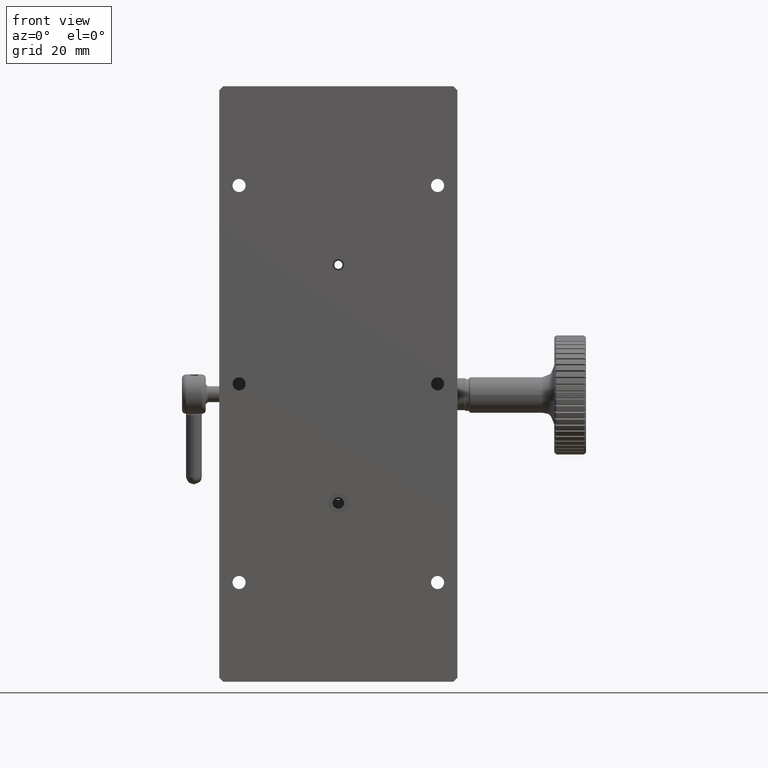
[diagram: clean part render]
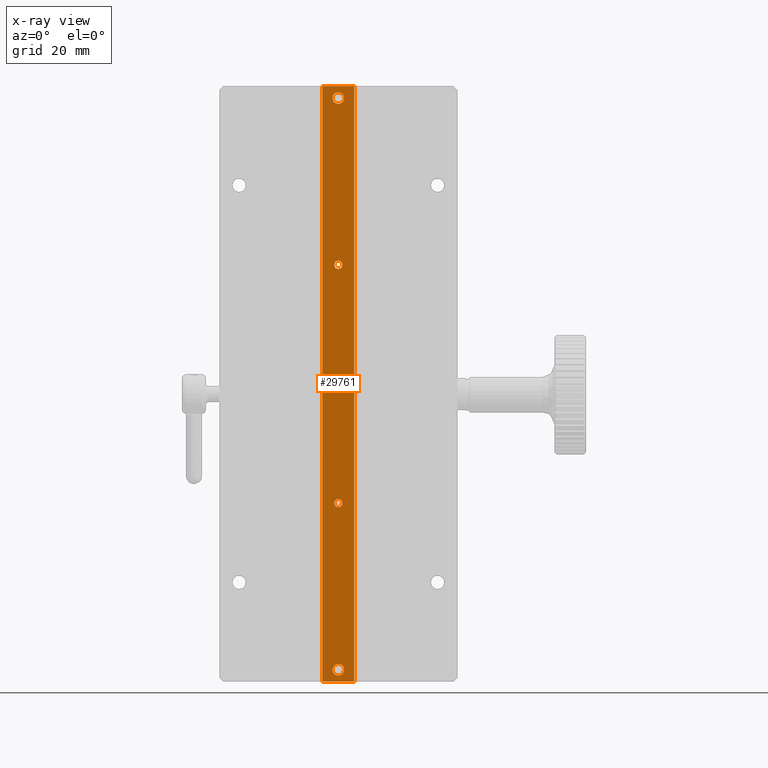
[diagram: x-ray — body ghosted, one internal face saturated and labeled with its STEP entity id]
A machine part, front view, then the same camera in x-ray: the body is ghosted and one INTERNAL B-rep face — a face not visible from any outside direction — is saturated and labeled: STEP entity #29761.
In plain terms, the highlighted planar face has unit normal (0, 1, 0).
Its self-contained STEP definition (entity closure, byte-faithful):
#71 = CARTESIAN_POINT ( 'NONE',  ( 64.50156960994758037, 67.00272800986742538, 18.27318078334705476 ) ) ;
#1290 = DIRECTION ( 'NONE',  ( 1.000000000000000000, 0.000000000000000000, -0.000000000000000000 ) ) ;
#2191 = DIRECTION ( 'NONE',  ( 0.000000000000000000, -1.000000000000000000, 0.000000000000000000 ) ) ;
#3383 = DIRECTION ( 'NONE',  ( 0.000000000000000000, 0.000000000000000000, 1.000000000000000000 ) ) ;
#5167 = EDGE_CURVE ( 'NONE', #84224, #84224, #61707, .T. ) ;
#5342 = CARTESIAN_POINT ( 'NONE',  ( 64.50156960994807775, 67.00272800986743960, 160.8231807833470555 ) ) ;
#7446 = AXIS2_PLACEMENT_3D ( 'NONE', #18727, #64277, #3383 ) ;
#8467 = LINE ( 'NONE', #39160, #63717 ) ;
#9261 = CARTESIAN_POINT ( 'NONE',  ( 64.50156960994770827, 67.00272800986743960, 57.79818078334702847 ) ) ;
#10774 = DIRECTION ( 'NONE',  ( 0.000000000000000000, -0.000000000000000000, 1.000000000000000000 ) ) ;
#13912 = EDGE_CURVE ( 'NONE', #20950, #67115, #59156, .T. ) ;
#15348 = EDGE_LOOP ( 'NONE', ( #17881 ) ) ;
#16232 = AXIS2_PLACEMENT_3D ( 'NONE', #64083, #2191, #49243 ) ;
#16724 = DIRECTION ( 'NONE',  ( 0.000000000000000000, -1.000000000000000000, 0.000000000000000000 ) ) ;
#17429 = VERTEX_POINT ( 'NONE', #71 ) ;
#17430 = PLANE ( 'NONE',  #56840 ) ;
#17881 = ORIENTED_EDGE ( 'NONE', *, *, #80274, .F. ) ;
#18727 = CARTESIAN_POINT ( 'NONE',  ( 64.50156960994758037, 67.00272800986742538, 16.82318078334704836 ) ) ;
#20950 = VERTEX_POINT ( 'NONE', #23530 ) ;
#21065 = VERTEX_POINT ( 'NONE', #76304 ) ;
#22450 = ORIENTED_EDGE ( 'NONE', *, *, #79866, .F. ) ;
#22547 = VERTEX_POINT ( 'NONE', #51816 ) ;
#23530 = CARTESIAN_POINT ( 'NONE',  ( 60.50156960994757327, 67.00272800986743960, 13.82318078334706435 ) ) ;
#23663 = LINE ( 'NONE', #69721, #76634 ) ;
#24811 = ORIENTED_EDGE ( 'NONE', *, *, #97729, .F. ) ;
#25188 = CARTESIAN_POINT ( 'NONE',  ( 68.50156960994772248, 67.00272800986743960, 13.82318078334704481 ) ) ;
#27992 = CARTESIAN_POINT ( 'NONE',  ( 64.50156960994807775, 67.00272800986743960, 162.2731807833470725 ) ) ;
#28854 = EDGE_LOOP ( 'NONE', ( #22450 ) ) ;
#29761 = ADVANCED_FACE ( 'NONE', ( #56304, #80367, #88542, #41476, #49647 ), #17430, .F. ) ;
#32110 = AXIS2_PLACEMENT_3D ( 'NONE', #96963, #16724, #48422 ) ;
#34622 = CARTESIAN_POINT ( 'NONE',  ( 60.50156960994757327, 67.00272800986743960, 163.8231807833470270 ) ) ;
#36921 = ORIENTED_EDGE ( 'NONE', *, *, #72229, .F. ) ;
#38244 = LINE ( 'NONE', #52090, #41869 ) ;
#38843 = AXIS2_PLACEMENT_3D ( 'NONE', #5342, #90765, #83092 ) ;
#39160 = CARTESIAN_POINT ( 'NONE',  ( 68.50156960994810618, 67.00272800986743960, 163.8231807833470555 ) ) ;
#39696 = ORIENTED_EDGE ( 'NONE', *, *, #13912, .F. ) ;
#41476 = FACE_BOUND ( 'NONE', #63404, .T. ) ;
#41869 = VECTOR ( 'NONE', #98638, 1000.000000000000000 ) ;
#48422 = DIRECTION ( 'NONE',  ( 0.000000000000000000, 0.000000000000000000, -1.000000000000000000 ) ) ;
#49243 = DIRECTION ( 'NONE',  ( 0.000000000000000000, 0.000000000000000000, -1.000000000000000000 ) ) ;
#49647 = FACE_BOUND ( 'NONE', #15348, .T. ) ;
#51816 = CARTESIAN_POINT ( 'NONE',  ( 68.50156960994810618, 67.00272800986743960, 163.8231807833470555 ) ) ;
#52090 = CARTESIAN_POINT ( 'NONE',  ( 68.50156960994810618, 67.00272800986743960, 13.82318078334704481 ) ) ;
#52581 = EDGE_CURVE ( 'NONE', #22547, #83486, #23663, .T. ) ;
#52802 = EDGE_CURVE ( 'NONE', #21065, #21065, #101138, .T. ) ;
#53039 = CARTESIAN_POINT ( 'NONE',  ( 60.50156960994796407, 67.00272800986743960, 163.8231807833470555 ) ) ;
#56304 = FACE_OUTER_BOUND ( 'NONE', #78945, .T. ) ;
#56840 = AXIS2_PLACEMENT_3D ( 'NONE', #96683, #80852, #10774 ) ;
#59156 = LINE ( 'NONE', #34622, #94714 ) ;
#60438 = ORIENTED_EDGE ( 'NONE', *, *, #52802, .F. ) ;
#61511 = CIRCLE ( 'NONE', #32110, 1.024999999999998135 ) ;
#61707 = CIRCLE ( 'NONE', #38843, 1.450000000000006839 ) ;
#63404 = EDGE_LOOP ( 'NONE', ( #60438 ) ) ;
#63717 = VECTOR ( 'NONE', #1290, 1000.000000000000000 ) ;
#64083 = CARTESIAN_POINT ( 'NONE',  ( 64.50156960994792144, 67.00272800986743960, 118.8231807833470270 ) ) ;
#64277 = DIRECTION ( 'NONE',  ( -0.000000000000000000, -1.000000000000000000, -0.000000000000000000 ) ) ;
#67115 = VERTEX_POINT ( 'NONE', #53039 ) ;
#68007 = ORIENTED_EDGE ( 'NONE', *, *, #52581, .F. ) ;
#69721 = CARTESIAN_POINT ( 'NONE',  ( 68.50156960994810618, 67.00272800986743960, 163.8231807833470270 ) ) ;
#72229 = EDGE_CURVE ( 'NONE', #83486, #20950, #38244, .T. ) ;
#76304 = CARTESIAN_POINT ( 'NONE',  ( 64.50156960994792144, 67.00272800986743960, 117.7981807833470356 ) ) ;
#76634 = VECTOR ( 'NONE', #86600, 1000.000000000000000 ) ;
#78945 = EDGE_LOOP ( 'NONE', ( #36921, #68007, #24811, #39696 ) ) ;
#79341 = VERTEX_POINT ( 'NONE', #9261 ) ;
#79866 = EDGE_CURVE ( 'NONE', #17429, #17429, #95671, .T. ) ;
#80274 = EDGE_CURVE ( 'NONE', #79341, #79341, #61511, .T. ) ;
#80367 = FACE_BOUND ( 'NONE', #28854, .T. ) ;
#80852 = DIRECTION ( 'NONE',  ( 0.000000000000000000, 1.000000000000000000, 0.000000000000000000 ) ) ;
#81144 = ORIENTED_EDGE ( 'NONE', *, *, #5167, .F. ) ;
#82981 = EDGE_LOOP ( 'NONE', ( #81144 ) ) ;
#83092 = DIRECTION ( 'NONE',  ( 0.000000000000000000, 0.000000000000000000, 1.000000000000000000 ) ) ;
#83486 = VERTEX_POINT ( 'NONE', #25188 ) ;
#84224 = VERTEX_POINT ( 'NONE', #27992 ) ;
#86600 = DIRECTION ( 'NONE',  ( -0.000000000000000000, 0.000000000000000000, -1.000000000000000000 ) ) ;
#88542 = FACE_BOUND ( 'NONE', #82981, .T. ) ;
#88850 = DIRECTION ( 'NONE',  ( 0.000000000000000000, -0.000000000000000000, 1.000000000000000000 ) ) ;
#90765 = DIRECTION ( 'NONE',  ( -0.000000000000000000, -1.000000000000000000, -0.000000000000000000 ) ) ;
#94714 = VECTOR ( 'NONE', #88850, 1000.000000000000000 ) ;
#95671 = CIRCLE ( 'NONE', #7446, 1.450000000000006839 ) ;
#96683 = CARTESIAN_POINT ( 'NONE',  ( 68.50156960994810618, 67.00272800986743960, 163.8231807833470270 ) ) ;
#96963 = CARTESIAN_POINT ( 'NONE',  ( 64.50156960994770827, 67.00272800986743960, 58.82318078334702705 ) ) ;
#97729 = EDGE_CURVE ( 'NONE', #67115, #22547, #8467, .T. ) ;
#98638 = DIRECTION ( 'NONE',  ( -1.000000000000000000, -0.000000000000000000, 0.000000000000000000 ) ) ;
#101138 = CIRCLE ( 'NONE', #16232, 1.024999999999984368 ) ;